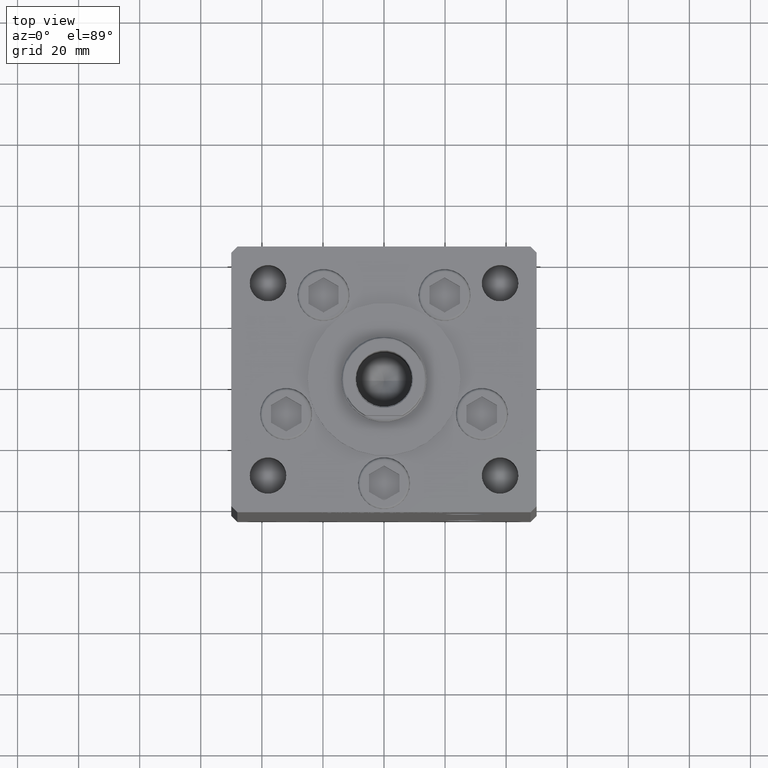
[diagram: clean part render]
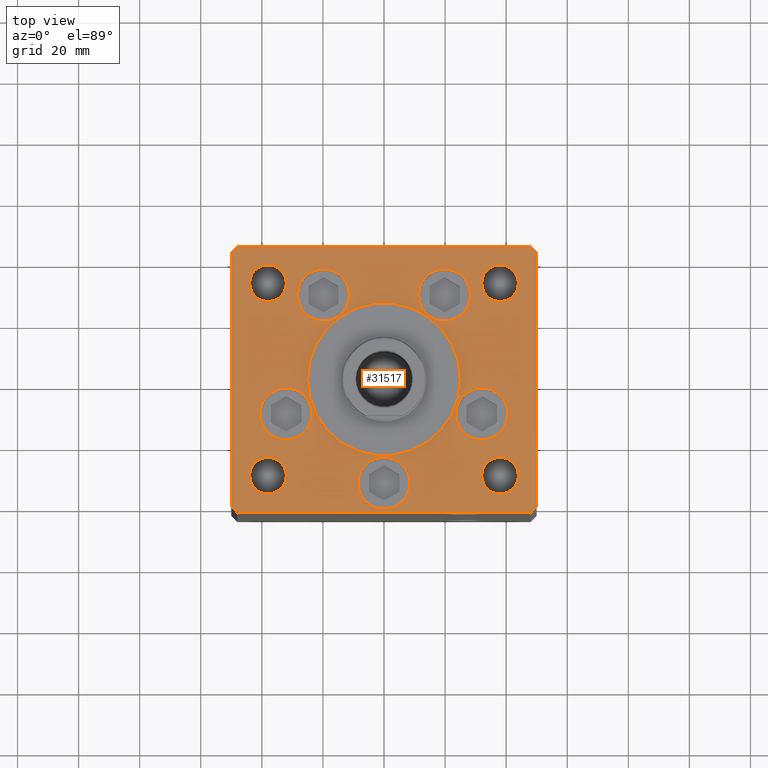
[diagram: same view with one face highlighted and labeled with its STEP entity id]
A machine part, top view. The second image highlights one B-rep face of the part: STEP entity #31517.
In plain terms, the highlighted planar face has unit normal (0, 0, 1).
Its self-contained STEP definition (entity closure, byte-faithful):
#13 = CIRCLE ( 'NONE', #25341, 8.500000000000000000 ) ;
#83 = FACE_BOUND ( 'NONE', #21128, .T. ) ;
#200 = CARTESIAN_POINT ( 'NONE',  ( 0.000000000000000000, -6.938893903907228378E-15, 0.000000000000000000 ) ) ;
#773 = CIRCLE ( 'NONE', #31926, 25.00000000000000000 ) ;
#888 = EDGE_CURVE ( 'NONE', #31983, #23051, #15382, .T. ) ;
#951 = EDGE_CURVE ( 'NONE', #15561, #5742, #6948, .T. ) ;
#1149 = CARTESIAN_POINT ( 'NONE',  ( -48.00000000000000711, -43.50000000000002842, 0.000000000000000000 ) ) ;
#1242 = CARTESIAN_POINT ( 'NONE',  ( 48.00000000000000711, -43.49999999999992184, 0.000000000000000000 ) ) ;
#1252 = VERTEX_POINT ( 'NONE', #39335 ) ;
#1362 = VERTEX_POINT ( 'NONE', #21101 ) ;
#1554 = CARTESIAN_POINT ( 'NONE',  ( 48.00000000000000711, -43.49999999999992184, 0.000000000000000000 ) ) ;
#1776 = EDGE_CURVE ( 'NONE', #39948, #50691, #45418, .T. ) ;
#1927 = VECTOR ( 'NONE', #33954, 1000.000000000000114 ) ;
#2196 = ORIENTED_EDGE ( 'NONE', *, *, #2355, .F. ) ;
#2355 = EDGE_CURVE ( 'NONE', #9580, #4399, #773, .T. ) ;
#2361 = CARTESIAN_POINT ( 'NONE',  ( -8.500000000000000000, -34.00000000000000000, 0.000000000000000000 ) ) ;
#2377 = DIRECTION ( 'NONE',  ( 1.000000000000000000, 0.000000000000000000, 0.000000000000000000 ) ) ;
#2425 = VERTEX_POINT ( 'NONE', #23966 ) ;
#2631 = EDGE_CURVE ( 'NONE', #2425, #39739, #21016, .T. ) ;
#3003 = FACE_BOUND ( 'NONE', #33227, .T. ) ;
#3031 = DIRECTION ( 'NONE',  ( 1.000000000000000000, 0.000000000000000000, 0.000000000000000000 ) ) ;
#3095 = CARTESIAN_POINT ( 'NONE',  ( -50.00000000000000000, -41.50000000000004263, 0.000000000000000000 ) ) ;
#3374 = DIRECTION ( 'NONE',  ( 1.000000000000000000, 0.000000000000000000, 0.000000000000000000 ) ) ;
#3454 = EDGE_CURVE ( 'NONE', #30798, #26199, #10086, .T. ) ;
#3568 = DIRECTION ( 'NONE',  ( 0.000000000000000000, 0.000000000000000000, 1.000000000000000000 ) ) ;
#3985 = AXIS2_PLACEMENT_3D ( 'NONE', #48489, #4151, #3374 ) ;
#4005 = CARTESIAN_POINT ( 'NONE',  ( -38.00000000000000000, 31.50000000000000000, 0.000000000000000000 ) ) ;
#4151 = DIRECTION ( 'NONE',  ( 0.000000000000000000, 0.000000000000000000, 1.000000000000000000 ) ) ;
#4169 = CIRCLE ( 'NONE', #32012, 8.500000000000000000 ) ;
#4399 = VERTEX_POINT ( 'NONE', #34965 ) ;
#4895 = AXIS2_PLACEMENT_3D ( 'NONE', #9527, #21669, #37758 ) ;
#5158 = VERTEX_POINT ( 'NONE', #22581 ) ;
#5162 = VERTEX_POINT ( 'NONE', #37170 ) ;
#5217 = EDGE_CURVE ( 'NONE', #5158, #1362, #45537, .T. ) ;
#5290 = DIRECTION ( 'NONE',  ( -0.7071067811865512365, 0.7071067811865439090, 0.000000000000000000 ) ) ;
#5407 = DIRECTION ( 'NONE',  ( -1.000000000000000000, 0.000000000000000000, 0.000000000000000000 ) ) ;
#5410 = CARTESIAN_POINT ( 'NONE',  ( 50.00000000000000000, 41.50000000000000711, 0.000000000000000000 ) ) ;
#5429 = AXIS2_PLACEMENT_3D ( 'NONE', #15146, #39671, #16182 ) ;
#5511 = EDGE_LOOP ( 'NONE', ( #7540, #25967, #31821, #40945, #16977, #45913, #35538, #42999 ) ) ;
#5645 = VECTOR ( 'NONE', #5290, 999.9999999999998863 ) ;
#5664 = CARTESIAN_POINT ( 'NONE',  ( -38.00000000000000000, 31.50000000000000000, 0.000000000000000000 ) ) ;
#5742 = VERTEX_POINT ( 'NONE', #5410 ) ;
#5801 = EDGE_CURVE ( 'NONE', #1362, #5158, #13, .T. ) ;
#6145 = AXIS2_PLACEMENT_3D ( 'NONE', #47133, #39455, #14933 ) ;
#6195 = VERTEX_POINT ( 'NONE', #17173 ) ;
#6314 = CARTESIAN_POINT ( 'NONE',  ( 38.00000000000000711, -31.50000000000000711, 0.000000000000000000 ) ) ;
#6687 = DIRECTION ( 'NONE',  ( -0.7071067811865536790, -0.7071067811865414665, 0.000000000000000000 ) ) ;
#6750 = CARTESIAN_POINT ( 'NONE',  ( 0.000000000000000000, -6.938893903907228378E-15, 0.000000000000000000 ) ) ;
#6948 = LINE ( 'NONE', #23053, #38643 ) ;
#6967 = FACE_BOUND ( 'NONE', #51965, .T. ) ;
#7187 = ORIENTED_EDGE ( 'NONE', *, *, #37060, .F. ) ;
#7387 = EDGE_CURVE ( 'NONE', #21183, #28858, #22648, .T. ) ;
#7440 = ORIENTED_EDGE ( 'NONE', *, *, #50387, .F. ) ;
#7540 = ORIENTED_EDGE ( 'NONE', *, *, #7387, .T. ) ;
#7998 = FACE_BOUND ( 'NONE', #42793, .T. ) ;
#8189 = VERTEX_POINT ( 'NONE', #16344 ) ;
#8202 = AXIS2_PLACEMENT_3D ( 'NONE', #6750, #50808, #22856 ) ;
#8296 = ORIENTED_EDGE ( 'NONE', *, *, #48452, .F. ) ;
#8461 = CIRCLE ( 'NONE', #35444, 5.999999999999998224 ) ;
#8730 = VERTEX_POINT ( 'NONE', #40356 ) ;
#8854 = CARTESIAN_POINT ( 'NONE',  ( 32.05550741379015989, -11.33333333333332860, 0.000000000000000000 ) ) ;
#8926 = CIRCLE ( 'NONE', #21593, 5.999999999999998224 ) ;
#9091 = DIRECTION ( 'NONE',  ( 0.000000000000000000, 0.000000000000000000, 1.000000000000000000 ) ) ;
#9213 = CARTESIAN_POINT ( 'NONE',  ( -50.00000000000000711, 41.49999999999999289, 0.000000000000000000 ) ) ;
#9387 = EDGE_CURVE ( 'NONE', #38253, #1252, #27083, .T. ) ;
#9527 = CARTESIAN_POINT ( 'NONE',  ( 38.00000000000000711, -31.50000000000000711, 0.000000000000000000 ) ) ;
#9580 = VERTEX_POINT ( 'NONE', #11561 ) ;
#9745 = DIRECTION ( 'NONE',  ( 1.000000000000000000, 0.000000000000000000, 0.000000000000000000 ) ) ;
#9780 = DIRECTION ( 'NONE',  ( 0.000000000000000000, 0.000000000000000000, 1.000000000000000000 ) ) ;
#9954 = ORIENTED_EDGE ( 'NONE', *, *, #41584, .T. ) ;
#10086 = CIRCLE ( 'NONE', #45458, 8.500000000000000000 ) ;
#10254 = EDGE_CURVE ( 'NONE', #23051, #21183, #10333, .T. ) ;
#10333 = LINE ( 'NONE', #47016, #23754 ) ;
#10546 = EDGE_CURVE ( 'NONE', #5162, #37378, #26287, .T. ) ;
#11314 = ORIENTED_EDGE ( 'NONE', *, *, #23313, .F. ) ;
#11561 = CARTESIAN_POINT ( 'NONE',  ( 25.00000000000000000, -3.877276906038844941E-15, 0.000000000000000000 ) ) ;
#11704 = FACE_BOUND ( 'NONE', #16381, .T. ) ;
#11726 = EDGE_LOOP ( 'NONE', ( #9954, #36117 ) ) ;
#12254 = AXIS2_PLACEMENT_3D ( 'NONE', #31239, #36250, #28331 ) ;
#12288 = CARTESIAN_POINT ( 'NONE',  ( 38.00000000000000000, 31.50000000000000000, 0.000000000000000000 ) ) ;
#12638 = CARTESIAN_POINT ( 'NONE',  ( -28.32068048781375325, 27.62499999999998934, 0.000000000000000000 ) ) ;
#12673 = DIRECTION ( 'NONE',  ( 1.000000000000000000, 0.000000000000000000, 0.000000000000000000 ) ) ;
#13180 = CARTESIAN_POINT ( 'NONE',  ( 19.82068048781374969, 27.62499999999998934, 0.000000000000000000 ) ) ;
#14171 = CARTESIAN_POINT ( 'NONE',  ( 44.00000000000001421, -31.50000000000000711, 0.000000000000000000 ) ) ;
#14567 = VERTEX_POINT ( 'NONE', #2361 ) ;
#14933 = DIRECTION ( 'NONE',  ( 1.000000000000000000, 0.000000000000000000, 0.000000000000000000 ) ) ;
#14956 = EDGE_CURVE ( 'NONE', #28858, #29748, #35284, .T. ) ;
#15146 = CARTESIAN_POINT ( 'NONE',  ( 0.000000000000000000, 0.000000000000000000, 0.000000000000000000 ) ) ;
#15281 = ORIENTED_EDGE ( 'NONE', *, *, #34434, .T. ) ;
#15382 = LINE ( 'NONE', #15639, #21809 ) ;
#15561 = VERTEX_POINT ( 'NONE', #47299 ) ;
#15639 = CARTESIAN_POINT ( 'NONE',  ( -48.00000000000000000, 43.49999999999997158, 0.000000000000000000 ) ) ;
#15709 = CIRCLE ( 'NONE', #47736, 8.500000000000000000 ) ;
#15735 = DIRECTION ( 'NONE',  ( 1.000000000000000000, 1.156482317317871331E-15, 0.000000000000000000 ) ) ;
#16103 = VECTOR ( 'NONE', #43736, 1000.000000000000000 ) ;
#16182 = DIRECTION ( 'NONE',  ( 1.000000000000000000, 0.000000000000000000, 0.000000000000000000 ) ) ;
#16267 = CARTESIAN_POINT ( 'NONE',  ( -48.00000000000000711, -43.50000000000002842, 0.000000000000000000 ) ) ;
#16344 = CARTESIAN_POINT ( 'NONE',  ( -44.00000000000000000, 31.50000000000000000, 0.000000000000000000 ) ) ;
#16381 = EDGE_LOOP ( 'NONE', ( #21735, #8296 ) ) ;
#16977 = ORIENTED_EDGE ( 'NONE', *, *, #38012, .T. ) ;
#17035 = CARTESIAN_POINT ( 'NONE',  ( 19.82068048781374969, 27.62499999999998934, 0.000000000000000000 ) ) ;
#17173 = CARTESIAN_POINT ( 'NONE',  ( -32.00000000000000000, 31.50000000000000000, 0.000000000000000000 ) ) ;
#17347 = EDGE_CURVE ( 'NONE', #22418, #31983, #26101, .T. ) ;
#17363 = ORIENTED_EDGE ( 'NONE', *, *, #2631, .F. ) ;
#18051 = CARTESIAN_POINT ( 'NONE',  ( -32.05550741379015989, -11.33333333333332860, 0.000000000000000000 ) ) ;
#18426 = EDGE_CURVE ( 'NONE', #29748, #15561, #37144, .T. ) ;
#18574 = DIRECTION ( 'NONE',  ( 0.000000000000000000, 1.000000000000000000, 0.000000000000000000 ) ) ;
#18786 = CIRCLE ( 'NONE', #6145, 8.500000000000000000 ) ;
#19171 = DIRECTION ( 'NONE',  ( 1.000000000000000000, 0.000000000000000000, 0.000000000000000000 ) ) ;
#20153 = FACE_BOUND ( 'NONE', #11726, .T. ) ;
#20402 = DIRECTION ( 'NONE',  ( 1.000000000000000000, 0.000000000000000000, 0.000000000000000000 ) ) ;
#20564 = CARTESIAN_POINT ( 'NONE',  ( -40.55550741379015989, -11.33333333333332682, 0.000000000000000000 ) ) ;
#20788 = DIRECTION ( 'NONE',  ( 1.000000000000000000, 0.000000000000000000, 0.000000000000000000 ) ) ;
#20913 = CARTESIAN_POINT ( 'NONE',  ( -19.82068048781374969, 27.62499999999998934, 0.000000000000000000 ) ) ;
#21016 = CIRCLE ( 'NONE', #27758, 5.999999999999998224 ) ;
#21101 = CARTESIAN_POINT ( 'NONE',  ( 23.55550741379015633, -11.33333333333332682, 0.000000000000000000 ) ) ;
#21128 = EDGE_LOOP ( 'NONE', ( #49015, #23034 ) ) ;
#21183 = VERTEX_POINT ( 'NONE', #26901 ) ;
#21511 = EDGE_CURVE ( 'NONE', #14567, #29025, #18786, .T. ) ;
#21593 = AXIS2_PLACEMENT_3D ( 'NONE', #5664, #45530, #5407 ) ;
#21669 = DIRECTION ( 'NONE',  ( -0.000000000000000000, -0.000000000000000000, -1.000000000000000000 ) ) ;
#21735 = ORIENTED_EDGE ( 'NONE', *, *, #46898, .F. ) ;
#21809 = VECTOR ( 'NONE', #6687, 1000.000000000000000 ) ;
#22418 = VERTEX_POINT ( 'NONE', #38682 ) ;
#22581 = CARTESIAN_POINT ( 'NONE',  ( 40.55550741379015989, -11.33333333333332860, 0.000000000000000000 ) ) ;
#22648 = LINE ( 'NONE', #3095, #16103 ) ;
#22754 = AXIS2_PLACEMENT_3D ( 'NONE', #39698, #47628, #3031 ) ;
#22760 = ORIENTED_EDGE ( 'NONE', *, *, #33701, .F. ) ;
#22856 = DIRECTION ( 'NONE',  ( 1.000000000000000000, 0.000000000000000000, 0.000000000000000000 ) ) ;
#23034 = ORIENTED_EDGE ( 'NONE', *, *, #5801, .F. ) ;
#23051 = VERTEX_POINT ( 'NONE', #9213 ) ;
#23053 = CARTESIAN_POINT ( 'NONE',  ( 50.00000000000000000, -41.49999999999992895, 0.000000000000000000 ) ) ;
#23313 = EDGE_CURVE ( 'NONE', #29025, #14567, #23933, .T. ) ;
#23617 = ORIENTED_EDGE ( 'NONE', *, *, #39490, .F. ) ;
#23754 = VECTOR ( 'NONE', #42797, 1000.000000000000000 ) ;
#23805 = DIRECTION ( 'NONE',  ( -0.000000000000000000, -0.000000000000000000, -1.000000000000000000 ) ) ;
#23933 = CIRCLE ( 'NONE', #33194, 8.500000000000000000 ) ;
#23966 = CARTESIAN_POINT ( 'NONE',  ( 32.00000000000000000, 31.50000000000000000, 0.000000000000000000 ) ) ;
#24100 = FACE_OUTER_BOUND ( 'NONE', #5511, .T. ) ;
#24275 = CARTESIAN_POINT ( 'NONE',  ( -11.32068048781375147, 27.62499999999998934, 0.000000000000000000 ) ) ;
#25341 = AXIS2_PLACEMENT_3D ( 'NONE', #8854, #44495, #36579 ) ;
#25342 = ORIENTED_EDGE ( 'NONE', *, *, #9387, .F. ) ;
#25452 = DIRECTION ( 'NONE',  ( 1.000000000000000000, 0.000000000000000000, 0.000000000000000000 ) ) ;
#25878 = CARTESIAN_POINT ( 'NONE',  ( -32.05550741379015989, -11.33333333333332860, 0.000000000000000000 ) ) ;
#25967 = ORIENTED_EDGE ( 'NONE', *, *, #14956, .T. ) ;
#25993 = DIRECTION ( 'NONE',  ( 0.000000000000000000, 0.000000000000000000, 1.000000000000000000 ) ) ;
#26038 = CIRCLE ( 'NONE', #43742, 6.000000000000005329 ) ;
#26101 = LINE ( 'NONE', #26362, #28876 ) ;
#26199 = VERTEX_POINT ( 'NONE', #51904 ) ;
#26254 = DIRECTION ( 'NONE',  ( 1.000000000000000000, 0.000000000000000000, 0.000000000000000000 ) ) ;
#26287 = CIRCLE ( 'NONE', #39760, 6.000000000000005329 ) ;
#26362 = CARTESIAN_POINT ( 'NONE',  ( 47.99999999999999289, 43.50000000000000000, 0.000000000000000000 ) ) ;
#26753 = CIRCLE ( 'NONE', #3985, 5.999999999999998224 ) ;
#26754 = DIRECTION ( 'NONE',  ( 0.000000000000000000, 0.000000000000000000, 1.000000000000000000 ) ) ;
#26901 = CARTESIAN_POINT ( 'NONE',  ( -50.00000000000000000, -41.50000000000004263, 0.000000000000000000 ) ) ;
#27083 = CIRCLE ( 'NONE', #47311, 8.500000000000000000 ) ;
#27758 = AXIS2_PLACEMENT_3D ( 'NONE', #12288, #40251, #47921 ) ;
#27924 = DIRECTION ( 'NONE',  ( 0.000000000000000000, 0.000000000000000000, 1.000000000000000000 ) ) ;
#28061 = FACE_BOUND ( 'NONE', #43055, .T. ) ;
#28291 = DIRECTION ( 'NONE',  ( -1.000000000000000000, 0.000000000000000000, 0.000000000000000000 ) ) ;
#28331 = DIRECTION ( 'NONE',  ( 1.000000000000000000, 0.000000000000000000, 0.000000000000000000 ) ) ;
#28858 = VERTEX_POINT ( 'NONE', #1149 ) ;
#28876 = VECTOR ( 'NONE', #30312, 1000.000000000000000 ) ;
#29012 = VERTEX_POINT ( 'NONE', #51949 ) ;
#29025 = VERTEX_POINT ( 'NONE', #51444 ) ;
#29276 = DIRECTION ( 'NONE',  ( 0.000000000000000000, 0.000000000000000000, 1.000000000000000000 ) ) ;
#29748 = VERTEX_POINT ( 'NONE', #1554 ) ;
#30274 = AXIS2_PLACEMENT_3D ( 'NONE', #20913, #49402, #20402 ) ;
#30312 = DIRECTION ( 'NONE',  ( -1.000000000000000000, -2.891205793294678326E-16, 0.000000000000000000 ) ) ;
#30798 = VERTEX_POINT ( 'NONE', #34077 ) ;
#30822 = CIRCLE ( 'NONE', #12254, 8.500000000000000000 ) ;
#31078 = CIRCLE ( 'NONE', #38649, 6.000000000000005329 ) ;
#31237 = FACE_BOUND ( 'NONE', #35544, .T. ) ;
#31239 = CARTESIAN_POINT ( 'NONE',  ( -19.82068048781374969, 27.62499999999998934, 0.000000000000000000 ) ) ;
#31517 = ADVANCED_FACE ( 'NONE', ( #6967, #3003, #31237, #83, #7998, #52053, #47603, #28061, #11704, #24100, #20153 ), #36248, .T. ) ;
#31821 = ORIENTED_EDGE ( 'NONE', *, *, #18426, .T. ) ;
#31926 = AXIS2_PLACEMENT_3D ( 'NONE', #200, #27924, #20788 ) ;
#31983 = VERTEX_POINT ( 'NONE', #37214 ) ;
#32012 = AXIS2_PLACEMENT_3D ( 'NONE', #25878, #9780, #2377 ) ;
#33194 = AXIS2_PLACEMENT_3D ( 'NONE', #39720, #9091, #25452 ) ;
#33227 = EDGE_LOOP ( 'NONE', ( #48687, #22760 ) ) ;
#33701 = EDGE_CURVE ( 'NONE', #50691, #39948, #30822, .T. ) ;
#33778 = LINE ( 'NONE', #41443, #5645 ) ;
#33954 = DIRECTION ( 'NONE',  ( 0.7071067811865474617, 0.7071067811865474617, 0.000000000000000000 ) ) ;
#34077 = CARTESIAN_POINT ( 'NONE',  ( 28.32068048781375325, 27.62499999999998934, 0.000000000000000000 ) ) ;
#34313 = CIRCLE ( 'NONE', #8202, 25.00000000000000000 ) ;
#34434 = EDGE_CURVE ( 'NONE', #6195, #8189, #8926, .T. ) ;
#34461 = EDGE_LOOP ( 'NONE', ( #15281, #42260 ) ) ;
#34659 = DIRECTION ( 'NONE',  ( 1.000000000000000000, 0.000000000000000000, 0.000000000000000000 ) ) ;
#34965 = CARTESIAN_POINT ( 'NONE',  ( -25.00000000000000000, -6.938893903907228378E-15, 0.000000000000000000 ) ) ;
#35202 = ORIENTED_EDGE ( 'NONE', *, *, #21511, .F. ) ;
#35284 = LINE ( 'NONE', #16267, #45791 ) ;
#35444 = AXIS2_PLACEMENT_3D ( 'NONE', #4005, #23805, #28291 ) ;
#35538 = ORIENTED_EDGE ( 'NONE', *, *, #888, .T. ) ;
#35544 = EDGE_LOOP ( 'NONE', ( #43678, #7187 ) ) ;
#36117 = ORIENTED_EDGE ( 'NONE', *, *, #10546, .T. ) ;
#36248 = PLANE ( 'NONE',  #5429 ) ;
#36250 = DIRECTION ( 'NONE',  ( 0.000000000000000000, 0.000000000000000000, 1.000000000000000000 ) ) ;
#36579 = DIRECTION ( 'NONE',  ( 1.000000000000000000, 0.000000000000000000, 0.000000000000000000 ) ) ;
#37060 = EDGE_CURVE ( 'NONE', #26199, #30798, #15709, .T. ) ;
#37144 = LINE ( 'NONE', #1242, #1927 ) ;
#37170 = CARTESIAN_POINT ( 'NONE',  ( 32.00000000000000000, -31.50000000000000711, 0.000000000000000000 ) ) ;
#37214 = CARTESIAN_POINT ( 'NONE',  ( -48.00000000000000000, 43.49999999999997158, 0.000000000000000000 ) ) ;
#37378 = VERTEX_POINT ( 'NONE', #14171 ) ;
#37758 = DIRECTION ( 'NONE',  ( -1.000000000000000000, 0.000000000000000000, 0.000000000000000000 ) ) ;
#37779 = ORIENTED_EDGE ( 'NONE', *, *, #42844, .F. ) ;
#38012 = EDGE_CURVE ( 'NONE', #5742, #22418, #33778, .T. ) ;
#38253 = VERTEX_POINT ( 'NONE', #20564 ) ;
#38618 = CIRCLE ( 'NONE', #4895, 6.000000000000005329 ) ;
#38643 = VECTOR ( 'NONE', #18574, 1000.000000000000000 ) ;
#38649 = AXIS2_PLACEMENT_3D ( 'NONE', #47397, #3568, #19171 ) ;
#38682 = CARTESIAN_POINT ( 'NONE',  ( 47.99999999999999289, 43.50000000000000000, 0.000000000000000000 ) ) ;
#39335 = CARTESIAN_POINT ( 'NONE',  ( -23.55550741379015989, -11.33333333333332860, 0.000000000000000000 ) ) ;
#39455 = DIRECTION ( 'NONE',  ( 0.000000000000000000, 0.000000000000000000, 1.000000000000000000 ) ) ;
#39490 = EDGE_CURVE ( 'NONE', #4399, #9580, #34313, .T. ) ;
#39671 = DIRECTION ( 'NONE',  ( -0.000000000000000000, 0.000000000000000000, 1.000000000000000000 ) ) ;
#39698 = CARTESIAN_POINT ( 'NONE',  ( 32.05550741379015989, -11.33333333333332860, 0.000000000000000000 ) ) ;
#39720 = CARTESIAN_POINT ( 'NONE',  ( 0.000000000000000000, -34.00000000000000000, 0.000000000000000000 ) ) ;
#39739 = VERTEX_POINT ( 'NONE', #48357 ) ;
#39760 = AXIS2_PLACEMENT_3D ( 'NONE', #6314, #46693, #50378 ) ;
#39948 = VERTEX_POINT ( 'NONE', #24275 ) ;
#40251 = DIRECTION ( 'NONE',  ( 0.000000000000000000, 0.000000000000000000, 1.000000000000000000 ) ) ;
#40356 = CARTESIAN_POINT ( 'NONE',  ( -44.00000000000001421, -31.50000000000000711, 0.000000000000000000 ) ) ;
#40945 = ORIENTED_EDGE ( 'NONE', *, *, #951, .T. ) ;
#41443 = CARTESIAN_POINT ( 'NONE',  ( 50.00000000000000000, 41.50000000000000711, 0.000000000000000000 ) ) ;
#41584 = EDGE_CURVE ( 'NONE', #37378, #5162, #38618, .T. ) ;
#42260 = ORIENTED_EDGE ( 'NONE', *, *, #51901, .T. ) ;
#42793 = EDGE_LOOP ( 'NONE', ( #11314, #35202 ) ) ;
#42797 = DIRECTION ( 'NONE',  ( 8.360113137237620037E-17, -1.000000000000000000, 0.000000000000000000 ) ) ;
#42844 = EDGE_CURVE ( 'NONE', #39739, #2425, #26753, .T. ) ;
#42999 = ORIENTED_EDGE ( 'NONE', *, *, #10254, .T. ) ;
#43055 = EDGE_LOOP ( 'NONE', ( #37779, #17363 ) ) ;
#43678 = ORIENTED_EDGE ( 'NONE', *, *, #3454, .F. ) ;
#43736 = DIRECTION ( 'NONE',  ( 0.7071067811865487940, -0.7071067811865463515, 0.000000000000000000 ) ) ;
#43742 = AXIS2_PLACEMENT_3D ( 'NONE', #49072, #48815, #12673 ) ;
#44495 = DIRECTION ( 'NONE',  ( 0.000000000000000000, 0.000000000000000000, 1.000000000000000000 ) ) ;
#45418 = CIRCLE ( 'NONE', #30274, 8.500000000000000000 ) ;
#45458 = AXIS2_PLACEMENT_3D ( 'NONE', #17035, #25993, #26254 ) ;
#45530 = DIRECTION ( 'NONE',  ( -0.000000000000000000, -0.000000000000000000, -1.000000000000000000 ) ) ;
#45537 = CIRCLE ( 'NONE', #22754, 8.500000000000000000 ) ;
#45791 = VECTOR ( 'NONE', #15735, 1000.000000000000000 ) ;
#45913 = ORIENTED_EDGE ( 'NONE', *, *, #17347, .T. ) ;
#46693 = DIRECTION ( 'NONE',  ( -0.000000000000000000, -0.000000000000000000, -1.000000000000000000 ) ) ;
#46898 = EDGE_CURVE ( 'NONE', #29012, #8730, #31078, .T. ) ;
#47016 = CARTESIAN_POINT ( 'NONE',  ( -50.00000000000000711, 41.49999999999999289, 0.000000000000000000 ) ) ;
#47133 = CARTESIAN_POINT ( 'NONE',  ( 0.000000000000000000, -34.00000000000000000, 0.000000000000000000 ) ) ;
#47299 = CARTESIAN_POINT ( 'NONE',  ( 50.00000000000000000, -41.49999999999992895, 0.000000000000000000 ) ) ;
#47311 = AXIS2_PLACEMENT_3D ( 'NONE', #18051, #26754, #34659 ) ;
#47397 = CARTESIAN_POINT ( 'NONE',  ( -38.00000000000000711, -31.50000000000000711, 0.000000000000000000 ) ) ;
#47545 = EDGE_LOOP ( 'NONE', ( #7440, #25342 ) ) ;
#47603 = FACE_BOUND ( 'NONE', #34461, .T. ) ;
#47628 = DIRECTION ( 'NONE',  ( 0.000000000000000000, 0.000000000000000000, 1.000000000000000000 ) ) ;
#47736 = AXIS2_PLACEMENT_3D ( 'NONE', #13180, #29276, #9745 ) ;
#47921 = DIRECTION ( 'NONE',  ( 1.000000000000000000, 0.000000000000000000, 0.000000000000000000 ) ) ;
#48357 = CARTESIAN_POINT ( 'NONE',  ( 44.00000000000000000, 31.50000000000000000, 0.000000000000000000 ) ) ;
#48452 = EDGE_CURVE ( 'NONE', #8730, #29012, #26038, .T. ) ;
#48489 = CARTESIAN_POINT ( 'NONE',  ( 38.00000000000000000, 31.50000000000000000, 0.000000000000000000 ) ) ;
#48687 = ORIENTED_EDGE ( 'NONE', *, *, #1776, .F. ) ;
#48815 = DIRECTION ( 'NONE',  ( 0.000000000000000000, 0.000000000000000000, 1.000000000000000000 ) ) ;
#49015 = ORIENTED_EDGE ( 'NONE', *, *, #5217, .F. ) ;
#49072 = CARTESIAN_POINT ( 'NONE',  ( -38.00000000000000711, -31.50000000000000711, 0.000000000000000000 ) ) ;
#49402 = DIRECTION ( 'NONE',  ( 0.000000000000000000, 0.000000000000000000, 1.000000000000000000 ) ) ;
#50378 = DIRECTION ( 'NONE',  ( -1.000000000000000000, 0.000000000000000000, 0.000000000000000000 ) ) ;
#50387 = EDGE_CURVE ( 'NONE', #1252, #38253, #4169, .T. ) ;
#50691 = VERTEX_POINT ( 'NONE', #12638 ) ;
#50808 = DIRECTION ( 'NONE',  ( 0.000000000000000000, 0.000000000000000000, 1.000000000000000000 ) ) ;
#51444 = CARTESIAN_POINT ( 'NONE',  ( 8.500000000000000000, -34.00000000000000000, 0.000000000000000000 ) ) ;
#51901 = EDGE_CURVE ( 'NONE', #8189, #6195, #8461, .T. ) ;
#51904 = CARTESIAN_POINT ( 'NONE',  ( 11.32068048781375147, 27.62499999999998934, 0.000000000000000000 ) ) ;
#51949 = CARTESIAN_POINT ( 'NONE',  ( -32.00000000000000000, -31.50000000000000711, 0.000000000000000000 ) ) ;
#51965 = EDGE_LOOP ( 'NONE', ( #23617, #2196 ) ) ;
#52053 = FACE_BOUND ( 'NONE', #47545, .T. ) ;